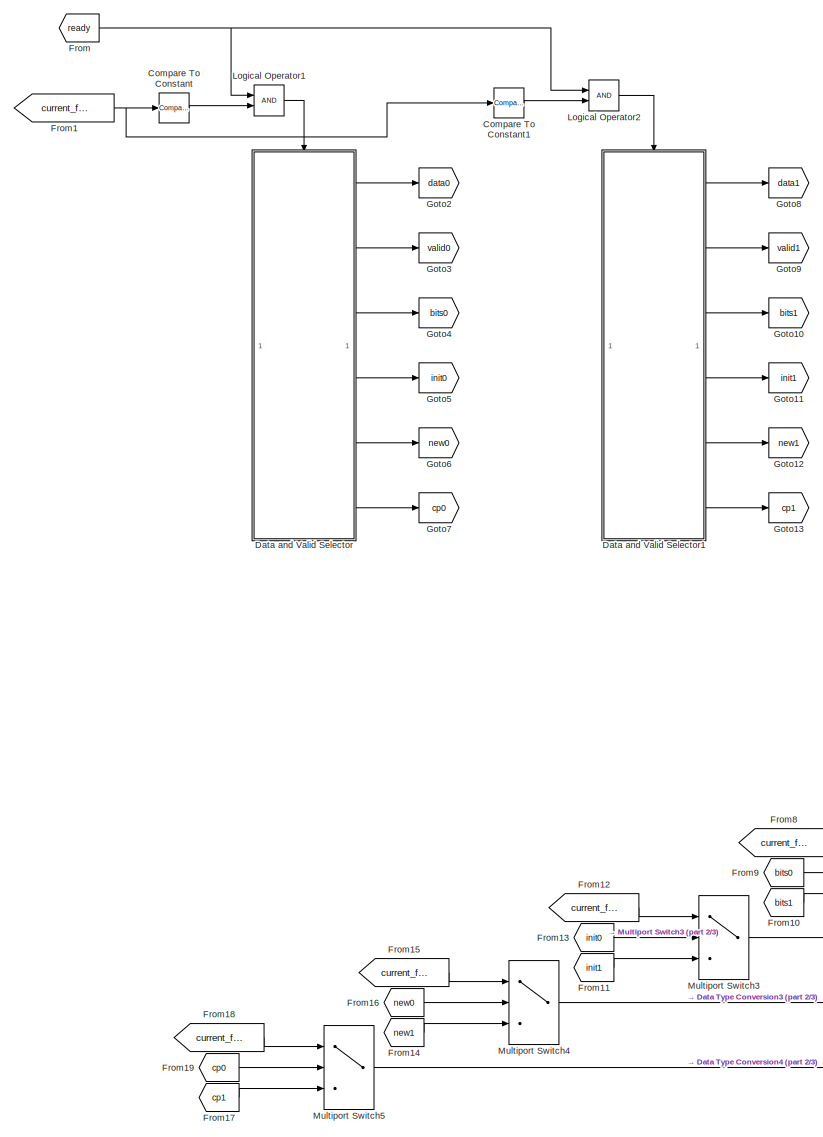
[diagram: root canvas - part 1/3, left side, full height]
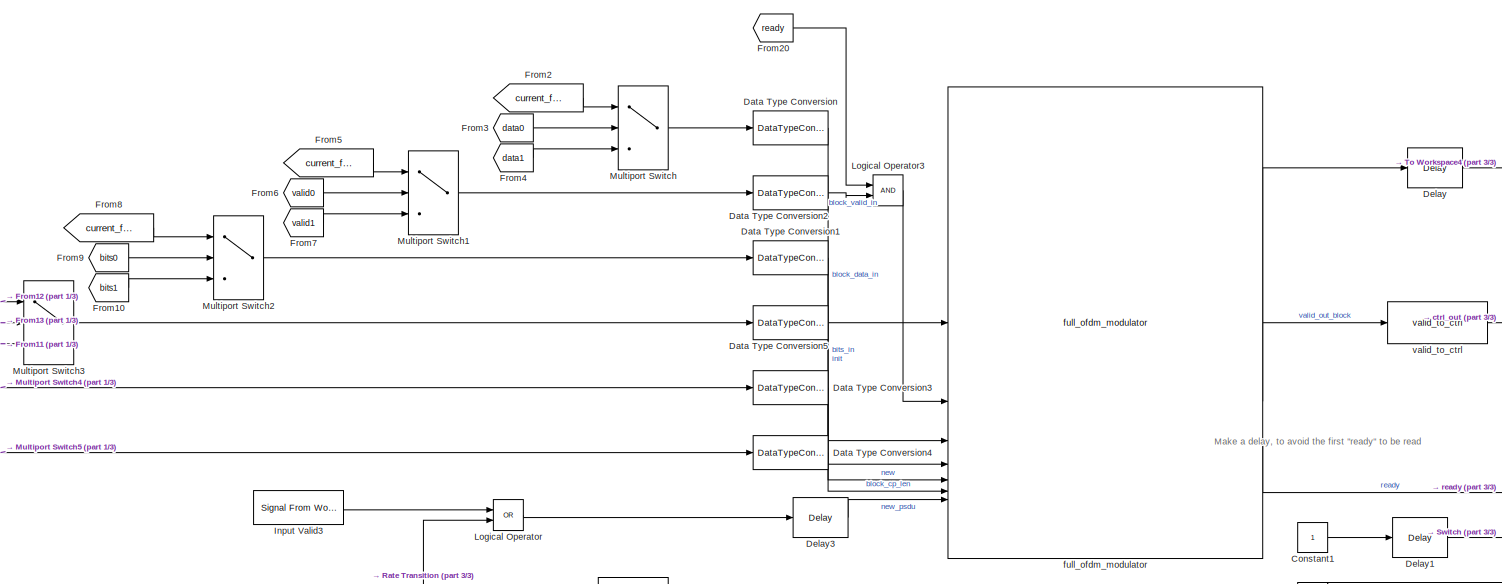
[diagram: root canvas - part 2/3, central region]
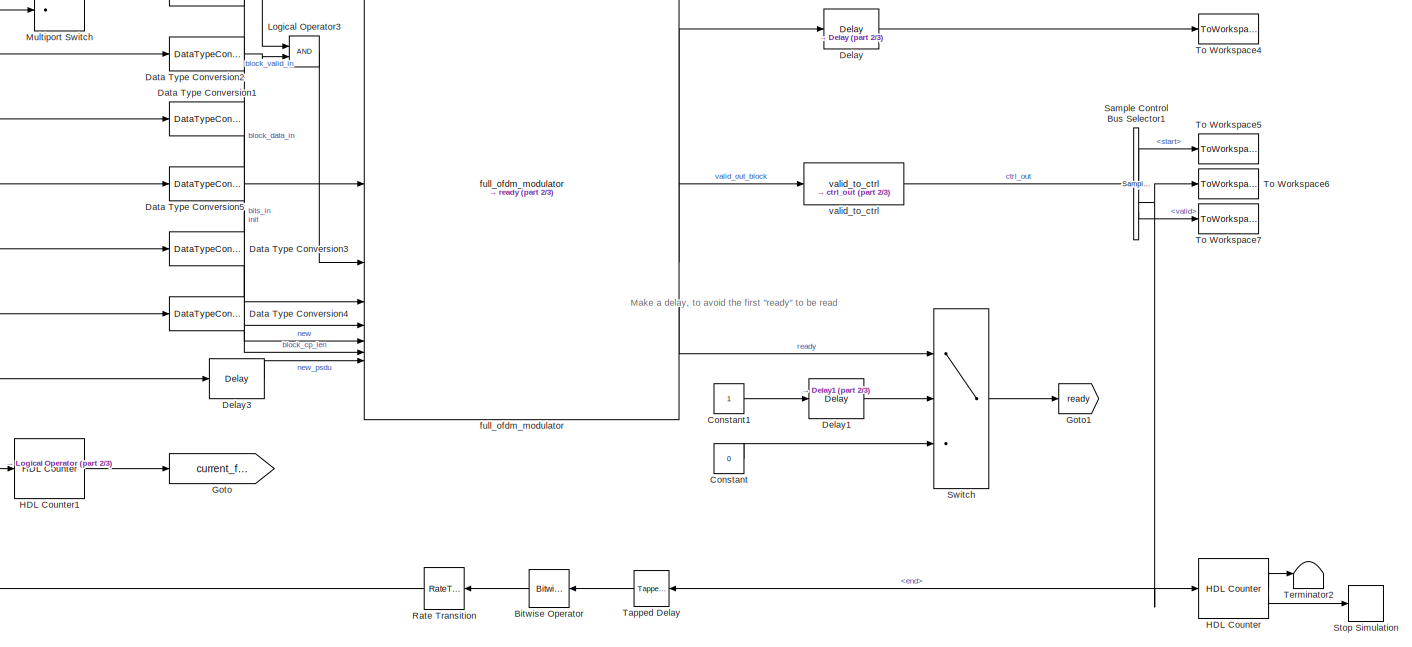
[diagram: root canvas - part 3/3, bottom right region]
MODEL slx_2378d66279c9
KIND model
CONFIG AbsTol = auto
CONFIG EnableMultiTasking = off
CONFIG FixedStep = auto
CONFIG MaxStep = auto
CONFIG MinStep = auto
CONFIG RelTol = 1e-3
CONFIG SampleTimeConstraint = Unconstrained
CONFIG SolverName = FixedStepDiscrete
CONFIG StartTime = 0.0
CONFIG StopTime = stopTime
BLOCK [Reference] Bitwise Operator  REF=simulink/Logic and Bit
Operations/Bitwise
Operator
  LibrarySourceBlock = hdlsllib/Logic and Bit\nOperations/Bitwise\nOperator
  NameLocation = top
  SourceBlock = simulink/Logic and Bit\nOperations/Bitwise\nOperator
  SourceType = Bitwise Operator
BLOCK [Reference] Compare To Constant  REF=hdlsllib/Logic and Bit
Operations/Compare
To Constant
  SourceBlock = hdlsllib/Logic and Bit\nOperations/Compare\nTo Constant
  SourceType = Compare To Constant
BLOCK [Reference] Compare To Constant1  REF=hdlsllib/Logic and Bit
Operations/Compare
To Constant
  SourceBlock = hdlsllib/Logic and Bit\nOperations/Compare\nTo Constant
  SourceType = Compare To Constant
BLOCK [Constant] Constant
  OutDataTypeStr = boolean
  SampleTime = 1/CONST.fPHY
  Value = 0
BLOCK [Constant] Constant1
  OutDataTypeStr = boolean
  SampleTime = 1/CONST.fPHY
BLOCK [DataTypeConversion] Data Type Conversion
  LockScale = on
  OutDataTypeStr = fixdt(0,12,0)
  RndMeth = Floor
  SaturateOnIntegerOverflow = off
BLOCK [DataTypeConversion] Data Type Conversion1
  LockScale = on
  OutDataTypeStr = fixdt(0,4,0)
  RndMeth = Floor
  SaturateOnIntegerOverflow = off
BLOCK [DataTypeConversion] Data Type Conversion2
  LockScale = on
  OutDataTypeStr = boolean
  RndMeth = Floor
  SaturateOnIntegerOverflow = off
BLOCK [DataTypeConversion] Data Type Conversion3
  LockScale = on
  OutDataTypeStr = boolean
  RndMeth = Floor
  SaturateOnIntegerOverflow = off
BLOCK [DataTypeConversion] Data Type Conversion4
  LockScale = on
  OutDataTypeStr = uint8
  RndMeth = Floor
  SaturateOnIntegerOverflow = off
BLOCK [DataTypeConversion] Data Type Conversion5
  LockScale = on
  OutDataTypeStr = boolean
  RndMeth = Floor
  SaturateOnIntegerOverflow = off
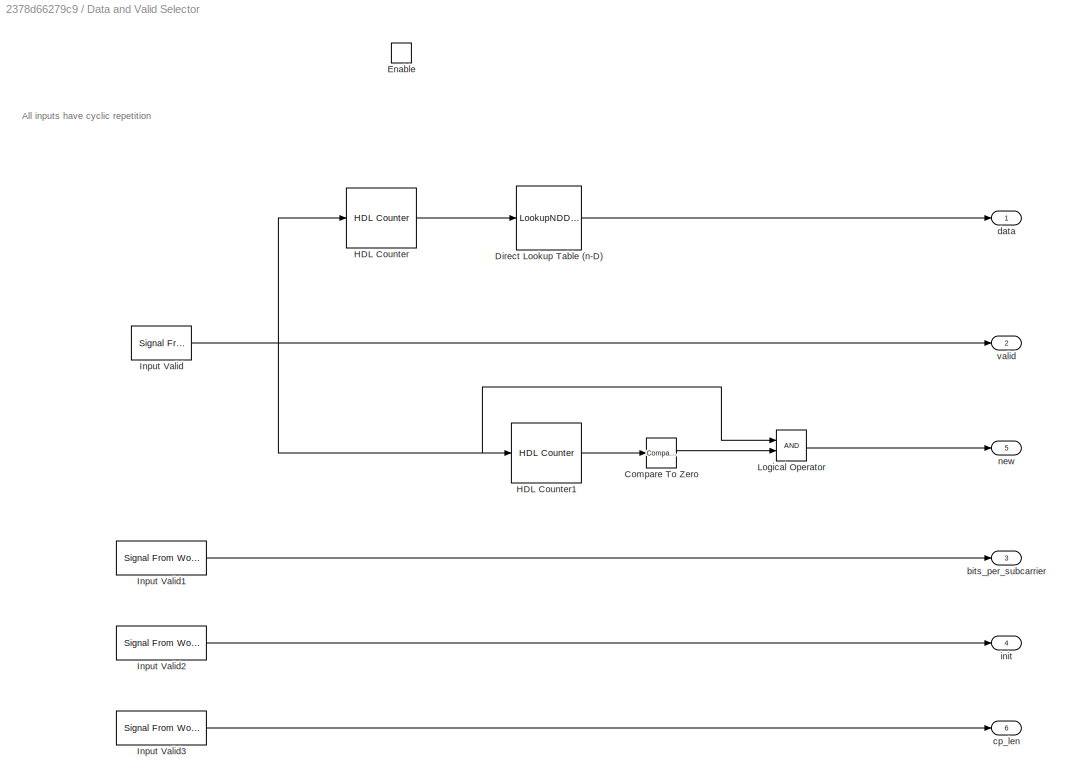
BLOCK [SubSystem] Data and Valid Selector
  TreatAsAtomicUnit = on
BLOCK [Reference] Data and Valid Selector/Compare To Zero  REF=hdlsllib/Logic and Bit
Operations/Compare
To Zero
  SourceBlock = hdlsllib/Logic and Bit\nOperations/Compare\nTo Zero
  SourceType = Compare To Zero
BLOCK [LookupNDDirect] Data and Valid Selector/Direct Lookup Table (n-D)
  DiagnosticForOutOfRangeInput = Error
  NumberOfTableDimensions = 1
  Table = dataSymbols
  TableDataTypeStr = fixdt(0,12,0)
BLOCK [EnablePort] Data and Valid Selector/Enable
BLOCK [Reference] Data and Valid Selector/HDL Counter  REF=hdlsllib/Sources/HDL Counter
  SourceBlock = hdlsllib/Sources/HDL Counter
  SourceType = HDL Counter
BLOCK [Reference] Data and Valid Selector/HDL Counter1  REF=hdlsllib/Sources/HDL Counter
  SourceBlock = hdlsllib/Sources/HDL Counter
  SourceType = HDL Counter
BLOCK [Reference] Data and Valid Selector/Input Valid  REF=dspsrcs4/Signal From
Workspace
  SourceBlock = dspsrcs4/Signal From\nWorkspace
  SourceType = Signal From Workspace
BLOCK [Reference] Data and Valid Selector/Input Valid1  REF=dspsrcs4/Signal From
Workspace
  SourceBlock = dspsrcs4/Signal From\nWorkspace
  SourceType = Signal From Workspace
BLOCK [Reference] Data and Valid Selector/Input Valid2  REF=dspsrcs4/Signal From
Workspace
  SourceBlock = dspsrcs4/Signal From\nWorkspace
  SourceType = Signal From Workspace
BLOCK [Reference] Data and Valid Selector/Input Valid3  REF=dspsrcs4/Signal From
Workspace
  SourceBlock = dspsrcs4/Signal From\nWorkspace
  SourceType = Signal From Workspace
BLOCK [Logic] Data and Valid Selector/Logical Operator
  AllPortsSameDT = off
  OutDataTypeStr = boolean
BLOCK [Outport] Data and Valid Selector/bits_per_subcarrier
  Port = 3
  VectorParamsAs1DForOutWhenUnconnected = off
BLOCK [Outport] Data and Valid Selector/cp_len
  Port = 6
  VectorParamsAs1DForOutWhenUnconnected = off
BLOCK [Outport] Data and Valid Selector/data
  InitialOutput = 0
  VectorParamsAs1DForOutWhenUnconnected = off
BLOCK [Outport] Data and Valid Selector/init
  Port = 4
  VectorParamsAs1DForOutWhenUnconnected = off
BLOCK [Outport] Data and Valid Selector/new
  Port = 5
  VectorParamsAs1DForOutWhenUnconnected = off
BLOCK [Outport] Data and Valid Selector/valid
  InitialOutput = 0
  Port = 2
  VectorParamsAs1DForOutWhenUnconnected = off
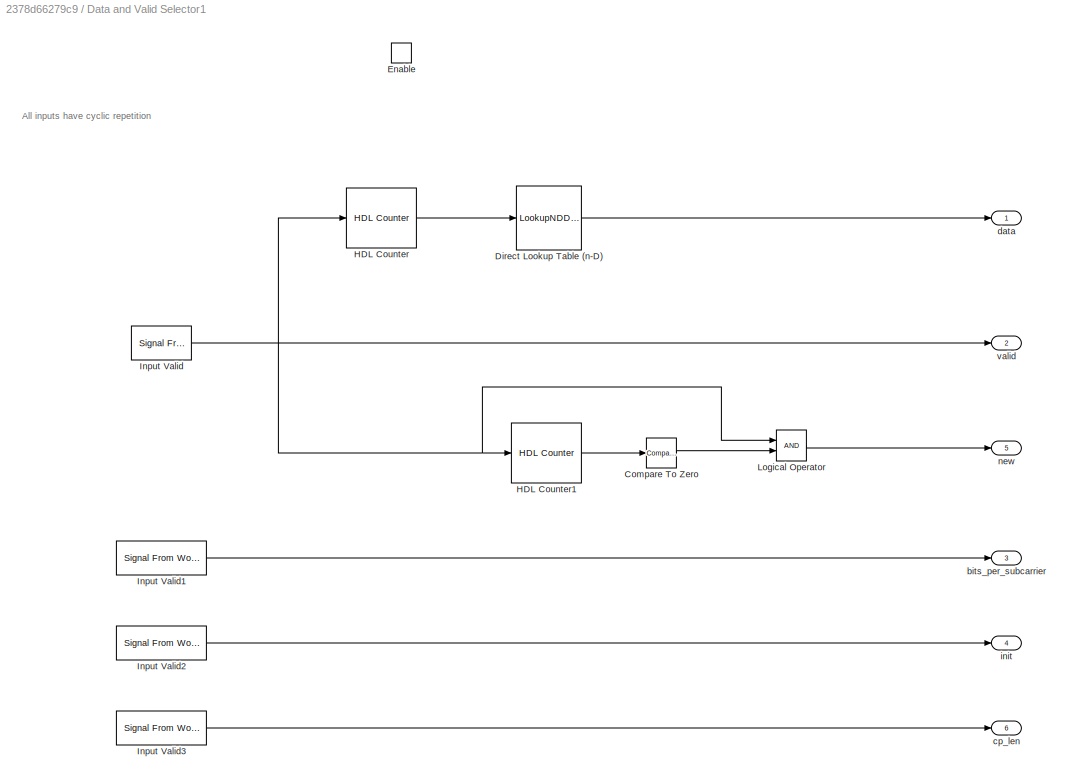
BLOCK [SubSystem] Data and Valid Selector1
  TreatAsAtomicUnit = on
BLOCK [Reference] Data and Valid Selector1/Compare To Zero  REF=hdlsllib/Logic and Bit
Operations/Compare
To Zero
  SourceBlock = hdlsllib/Logic and Bit\nOperations/Compare\nTo Zero
  SourceType = Compare To Zero
BLOCK [LookupNDDirect] Data and Valid Selector1/Direct Lookup Table (n-D)
  DiagnosticForOutOfRangeInput = Error
  NumberOfTableDimensions = 1
  Table = dataSymbols
  TableDataTypeStr = fixdt(0,12,0)
BLOCK [EnablePort] Data and Valid Selector1/Enable
BLOCK [Reference] Data and Valid Selector1/HDL Counter  REF=hdlsllib/Sources/HDL Counter
  SourceBlock = hdlsllib/Sources/HDL Counter
  SourceType = HDL Counter
BLOCK [Reference] Data and Valid Selector1/HDL Counter1  REF=hdlsllib/Sources/HDL Counter
  SourceBlock = hdlsllib/Sources/HDL Counter
  SourceType = HDL Counter
BLOCK [Reference] Data and Valid Selector1/Input Valid  REF=dspsrcs4/Signal From
Workspace
  SourceBlock = dspsrcs4/Signal From\nWorkspace
  SourceType = Signal From Workspace
BLOCK [Reference] Data and Valid Selector1/Input Valid1  REF=dspsrcs4/Signal From
Workspace
  SourceBlock = dspsrcs4/Signal From\nWorkspace
  SourceType = Signal From Workspace
BLOCK [Reference] Data and Valid Selector1/Input Valid2  REF=dspsrcs4/Signal From
Workspace
  SourceBlock = dspsrcs4/Signal From\nWorkspace
  SourceType = Signal From Workspace
BLOCK [Reference] Data and Valid Selector1/Input Valid3  REF=dspsrcs4/Signal From
Workspace
  SourceBlock = dspsrcs4/Signal From\nWorkspace
  SourceType = Signal From Workspace
BLOCK [Logic] Data and Valid Selector1/Logical Operator
  AllPortsSameDT = off
  OutDataTypeStr = boolean
BLOCK [Outport] Data and Valid Selector1/bits_per_subcarrier
  Port = 3
  VectorParamsAs1DForOutWhenUnconnected = off
BLOCK [Outport] Data and Valid Selector1/cp_len
  Port = 6
  VectorParamsAs1DForOutWhenUnconnected = off
BLOCK [Outport] Data and Valid Selector1/data
  InitialOutput = 0
  VectorParamsAs1DForOutWhenUnconnected = off
BLOCK [Outport] Data and Valid Selector1/init
  Port = 4
  VectorParamsAs1DForOutWhenUnconnected = off
BLOCK [Outport] Data and Valid Selector1/new
  Port = 5
  VectorParamsAs1DForOutWhenUnconnected = off
BLOCK [Outport] Data and Valid Selector1/valid
  InitialOutput = 0
  Port = 2
  VectorParamsAs1DForOutWhenUnconnected = off
BLOCK [Delay] Delay
  DelayLength = 1
  InitialCondition = 0
  InputPortMap = u0
  UseCircularBuffer = on
  UserDataPersistent = on
BLOCK [Delay] Delay1
  DelayLength = 1024
  InitialCondition = 0
  InputPortMap = u0
  UseCircularBuffer = on
  UserDataPersistent = on
BLOCK [Delay] Delay3
  DelayLength = 1024
  InitialCondition = 0
  InputPortMap = u0
  UseCircularBuffer = on
  UserDataPersistent = on
BLOCK [From] From
  GotoTag = ready
BLOCK [From] From1
  GotoTag = current_frame
BLOCK [From] From10
  GotoTag = bits1
BLOCK [From] From11
  GotoTag = init1
BLOCK [From] From12
  GotoTag = current_frame
BLOCK [From] From13
  GotoTag = init0
BLOCK [From] From14
  GotoTag = new1
BLOCK [From] From15
  GotoTag = current_frame
BLOCK [From] From16
  GotoTag = new0
BLOCK [From] From17
  GotoTag = cp1
BLOCK [From] From18
  GotoTag = current_frame
BLOCK [From] From19
  GotoTag = cp0
BLOCK [From] From2
  GotoTag = current_frame
BLOCK [From] From20
  GotoTag = ready
BLOCK [From] From3
  GotoTag = data0
BLOCK [From] From4
  GotoTag = data1
BLOCK [From] From5
  GotoTag = current_frame
BLOCK [From] From6
  GotoTag = valid0
BLOCK [From] From7
  GotoTag = valid1
BLOCK [From] From8
  GotoTag = current_frame
BLOCK [From] From9
  GotoTag = bits0
BLOCK [Goto] Goto
  GotoTag = current_frame
BLOCK [Goto] Goto1
  GotoTag = ready
BLOCK [Goto] Goto10
  GotoTag = bits1
BLOCK [Goto] Goto11
  GotoTag = init1
BLOCK [Goto] Goto12
  GotoTag = new1
BLOCK [Goto] Goto13
  GotoTag = cp1
BLOCK [Goto] Goto2
  GotoTag = data0
BLOCK [Goto] Goto3
  GotoTag = valid0
BLOCK [Goto] Goto4
  GotoTag = bits0
BLOCK [Goto] Goto5
  GotoTag = init0
BLOCK [Goto] Goto6
  GotoTag = new0
BLOCK [Goto] Goto7
  GotoTag = cp0
BLOCK [Goto] Goto8
  GotoTag = data1
BLOCK [Goto] Goto9
  GotoTag = valid1
BLOCK [Reference] HDL Counter  REF=hdlsllib/Sources/HDL Counter
  SourceBlock = hdlsllib/Sources/HDL Counter
  SourceType = HDL Counter
BLOCK [Reference] HDL Counter1  REF=hdlsllib/Sources/HDL Counter
  SourceBlock = hdlsllib/Sources/HDL Counter
  SourceType = HDL Counter
BLOCK [Reference] Input Valid3  REF=dspsrcs4/Signal From
Workspace
  SourceBlock = dspsrcs4/Signal From\nWorkspace
  SourceType = Signal From Workspace
BLOCK [Logic] Logical Operator
  AllPortsSameDT = off
  Operator = OR
  OutDataTypeStr = boolean
BLOCK [Logic] Logical Operator1
  AllPortsSameDT = off
  OutDataTypeStr = boolean
BLOCK [Logic] Logical Operator2
  AllPortsSameDT = off
  OutDataTypeStr = boolean
BLOCK [Logic] Logical Operator3
  AllPortsSameDT = off
  OutDataTypeStr = boolean
BLOCK [MultiPortSwitch] Multiport Switch
  DataPortOrder = Zero-based contiguous
  InputSameDT = off
  Inputs = 2
  SaturateOnIntegerOverflow = off
  zeroidx = on
BLOCK [MultiPortSwitch] Multiport Switch1
  DataPortOrder = Zero-based contiguous
  InputSameDT = off
  Inputs = 2
  SaturateOnIntegerOverflow = off
  zeroidx = on
BLOCK [MultiPortSwitch] Multiport Switch2
  DataPortOrder = Zero-based contiguous
  InputSameDT = off
  Inputs = 2
  SaturateOnIntegerOverflow = off
  zeroidx = on
BLOCK [MultiPortSwitch] Multiport Switch3
  DataPortOrder = Zero-based contiguous
  InputSameDT = off
  Inputs = 2
  SaturateOnIntegerOverflow = off
  zeroidx = on
BLOCK [MultiPortSwitch] Multiport Switch4
  DataPortOrder = Zero-based contiguous
  InputSameDT = off
  Inputs = 2
  SaturateOnIntegerOverflow = off
  zeroidx = on
BLOCK [MultiPortSwitch] Multiport Switch5
  DataPortOrder = Zero-based contiguous
  InputSameDT = off
  Inputs = 2
  SaturateOnIntegerOverflow = off
  zeroidx = on
BLOCK [RateTransition] Rate Transition
  NameLocation = top
  OutPortSampleTimeMultiple = 2
  OutPortSampleTimeOpt = Multiple of input port sample time
BLOCK [Reference] Sample Control Bus Selector1  REF=whdlutilities/Sample Control
Bus Selector
  SourceBlock = whdlutilities/Sample Control\nBus Selector
BLOCK [Stop] Stop Simulation
BLOCK [Switch] Switch
  Criteria = u2 ~= 0
  InputSameDT = off
  NameLocation = top
  SaturateOnIntegerOverflow = off
BLOCK [Reference] Tapped Delay  REF=simulink/Discrete/Tapped Delay
  LibrarySourceBlock = hdlsllib/Discrete/Tapped Delay
  NameLocation = top
  SourceBlock = simulink/Discrete/Tapped Delay
  SourceType = Tapped Delay Line
BLOCK [Terminator] Terminator2
BLOCK [ToWorkspace] To Workspace4
  MaxDataPoints = inf
  SampleTime = 1/CONST.fDAC
  Save2DSignal = 2-D array (concatenate along first dimension)
  VariableName = dataOut
BLOCK [ToWorkspace] To Workspace5
  MaxDataPoints = inf
  SampleTime = 1/CONST.fDAC
  Save2DSignal = 2-D array (concatenate along first dimension)
  VariableName = startOut
BLOCK [ToWorkspace] To Workspace6
  MaxDataPoints = inf
  SampleTime = 1/CONST.fDAC
  Save2DSignal = 2-D array (concatenate along first dimension)
  VariableName = endOut
BLOCK [ToWorkspace] To Workspace7
  MaxDataPoints = inf
  SampleTime = 1/CONST.fDAC
  Save2DSignal = 2-D array (concatenate along first dimension)
  VariableName = validOut
BLOCK [Reference] full_ofdm_modulator  REF=HDL_ieee_8021513/full_ofdm_modulator
  SourceBlock = HDL_ieee_8021513/full_ofdm_modulator
  SourceProductName = HDL IEEE 8021513
  SourceType = SubSystem
BLOCK [Reference] valid_to_ctrl  REF=HDL_ieee_8021513/valid_to_ctrl
  SourceBlock = HDL_ieee_8021513/valid_to_ctrl
  SourceProductName = HDL IEEE 8021513
  SourceType = SubSystem
ANNOTATION (root): Make a delay, to avoid the first "ready" to be read
ANNOTATION Data and Valid Selector: All inputs have cyclic repetition
ANNOTATION Data and Valid Selector1: All inputs have cyclic repetition
LINE Bitwise Operator:1 -> Rate Transition:1
LINE Compare To Constant1:1 -> Logical Operator2:2
LINE Compare To Constant:1 -> Logical Operator1:2
LINE Constant1:1 -> Delay1:1
LINE Constant:1 -> Switch:3
LINE Data Type Conversion1:1 -> full_ofdm_modulator:3
LINE Data Type Conversion2:1 -> Logical Operator3:2
LINE Data Type Conversion3:1 -> full_ofdm_modulator:5
LINE Data Type Conversion4:1 -> full_ofdm_modulator:6
LINE Data Type Conversion5:1 -> full_ofdm_modulator:4
LINE Data Type Conversion:1 -> full_ofdm_modulator:1
LINE Data and Valid Selector/Compare To Zero:1 -> Data and Valid Selector/Logical Operator:2
LINE Data and Valid Selector/Direct Lookup Table (n-D):1 -> Data and Valid Selector/data:1
LINE Data and Valid Selector/HDL Counter1:1 -> Data and Valid Selector/Compare To Zero:1
LINE Data and Valid Selector/HDL Counter:1 -> Data and Valid Selector/Direct Lookup Table (n-D):1
LINE Data and Valid Selector/Input Valid1:1 -> Data and Valid Selector/bits_per_subcarrier:1
LINE Data and Valid Selector/Input Valid2:1 -> Data and Valid Selector/init:1
LINE Data and Valid Selector/Input Valid3:1 -> Data and Valid Selector/cp_len:1
NET Data and Valid Selector/Input Valid:1 -> Data and Valid Selector/HDL Counter1:1, Data and Valid Selector/HDL Counter:1, Data and Valid Selector/Logical Operator:1, Data and Valid Selector/valid:1
LINE Data and Valid Selector/Logical Operator:1 -> Data and Valid Selector/new:1
LINE Data and Valid Selector1/Compare To Zero:1 -> Data and Valid Selector1/Logical Operator:2
LINE Data and Valid Selector1/Direct Lookup Table (n-D):1 -> Data and Valid Selector1/data:1
LINE Data and Valid Selector1/HDL Counter1:1 -> Data and Valid Selector1/Compare To Zero:1
LINE Data and Valid Selector1/HDL Counter:1 -> Data and Valid Selector1/Direct Lookup Table (n-D):1
LINE Data and Valid Selector1/Input Valid1:1 -> Data and Valid Selector1/bits_per_subcarrier:1
LINE Data and Valid Selector1/Input Valid2:1 -> Data and Valid Selector1/init:1
LINE Data and Valid Selector1/Input Valid3:1 -> Data and Valid Selector1/cp_len:1
NET Data and Valid Selector1/Input Valid:1 -> Data and Valid Selector1/HDL Counter1:1, Data and Valid Selector1/HDL Counter:1, Data and Valid Selector1/Logical Operator:1, Data and Valid Selector1/valid:1
LINE Data and Valid Selector1/Logical Operator:1 -> Data and Valid Selector1/new:1
LINE Data and Valid Selector1:1 -> Goto8:1
LINE Data and Valid Selector1:2 -> Goto9:1
LINE Data and Valid Selector1:3 -> Goto10:1
LINE Data and Valid Selector1:4 -> Goto11:1
LINE Data and Valid Selector1:5 -> Goto12:1
LINE Data and Valid Selector1:6 -> Goto13:1
LINE Data and Valid Selector:1 -> Goto2:1
LINE Data and Valid Selector:2 -> Goto3:1
LINE Data and Valid Selector:3 -> Goto4:1
LINE Data and Valid Selector:4 -> Goto5:1
LINE Data and Valid Selector:5 -> Goto6:1
LINE Data and Valid Selector:6 -> Goto7:1
LINE Delay1:1 -> Switch:2
LINE Delay3:1 -> full_ofdm_modulator:7
LINE Delay:1 -> To Workspace4:1
LINE From10:1 -> Multiport Switch2:3
LINE From11:1 -> Multiport Switch3:3
LINE From12:1 -> Multiport Switch3:1
LINE From13:1 -> Multiport Switch3:2
LINE From14:1 -> Multiport Switch4:3
LINE From15:1 -> Multiport Switch4:1
LINE From16:1 -> Multiport Switch4:2
LINE From17:1 -> Multiport Switch5:3
LINE From18:1 -> Multiport Switch5:1
LINE From19:1 -> Multiport Switch5:2
NET From1:1 -> Compare To Constant1:1, Compare To Constant:1
LINE From20:1 -> Logical Operator3:1
LINE From2:1 -> Multiport Switch:1
LINE From3:1 -> Multiport Switch:2
LINE From4:1 -> Multiport Switch:3
LINE From5:1 -> Multiport Switch1:1
LINE From6:1 -> Multiport Switch1:2
LINE From7:1 -> Multiport Switch1:3
LINE From8:1 -> Multiport Switch2:1
LINE From9:1 -> Multiport Switch2:2
NET From:1 -> Logical Operator1:1, Logical Operator2:1
LINE HDL Counter1:1 -> Goto:1
LINE HDL Counter:1 -> Terminator2:1
LINE HDL Counter:2 -> Stop Simulation:1
LINE Input Valid3:1 -> Logical Operator:1
LINE Logical Operator1:1 -> Data and Valid Selector:enable
LINE Logical Operator2:1 -> Data and Valid Selector1:enable
LINE Logical Operator3:1 -> full_ofdm_modulator:2
LINE Logical Operator:1 -> Delay3:1
LINE Multiport Switch1:1 -> Data Type Conversion2:1
LINE Multiport Switch2:1 -> Data Type Conversion1:1
LINE Multiport Switch3:1 -> Data Type Conversion5:1
LINE Multiport Switch4:1 -> Data Type Conversion3:1
LINE Multiport Switch5:1 -> Data Type Conversion4:1
LINE Multiport Switch:1 -> Data Type Conversion:1
NET Rate Transition:1 -> HDL Counter1:1, Logical Operator:2
LINE Sample Control Bus Selector1:1 -> To Workspace5:1
NET Sample Control Bus Selector1:2 -> HDL Counter:1, Tapped Delay:1, To Workspace6:1
LINE Sample Control Bus Selector1:3 -> To Workspace7:1
LINE Switch:1 -> Goto1:1
LINE Tapped Delay:1 -> Bitwise Operator:1
LINE full_ofdm_modulator:1 -> Delay:1
LINE full_ofdm_modulator:2 -> valid_to_ctrl:1
LINE full_ofdm_modulator:3 -> Switch:1
LINE valid_to_ctrl:1 -> Sample Control Bus Selector1:1
note: NET lines group one-source signal fan-out (src -> all destinations, sorted); 1:1 wires keep LINE
